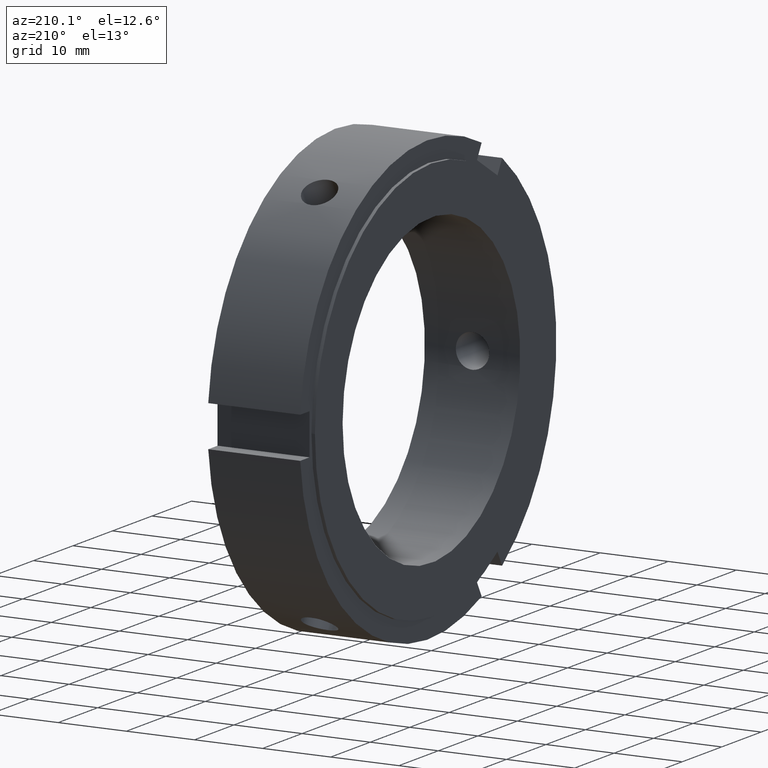
[diagram: clean part render]
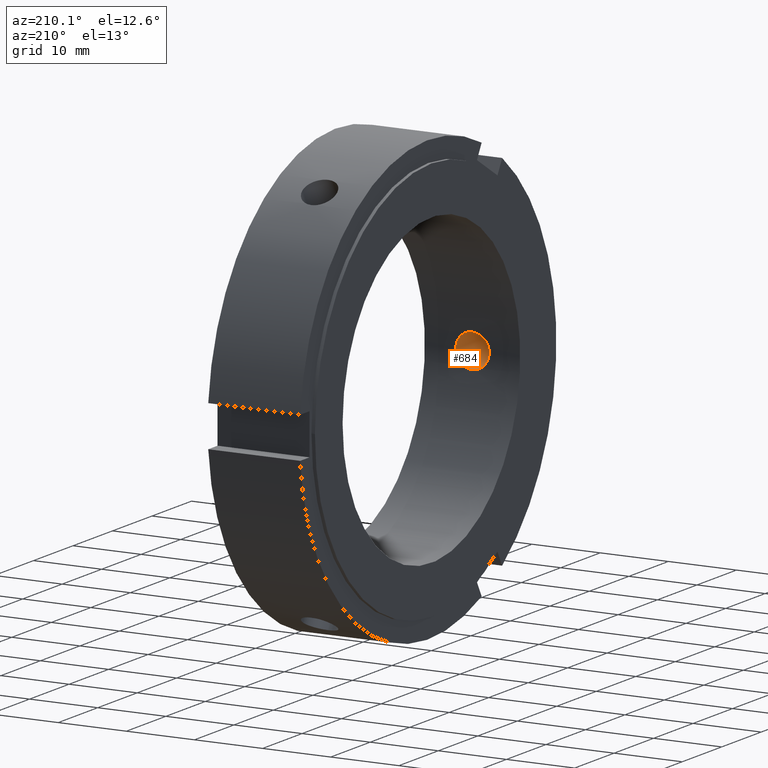
[diagram: same view with one face highlighted and labeled with its STEP entity id]
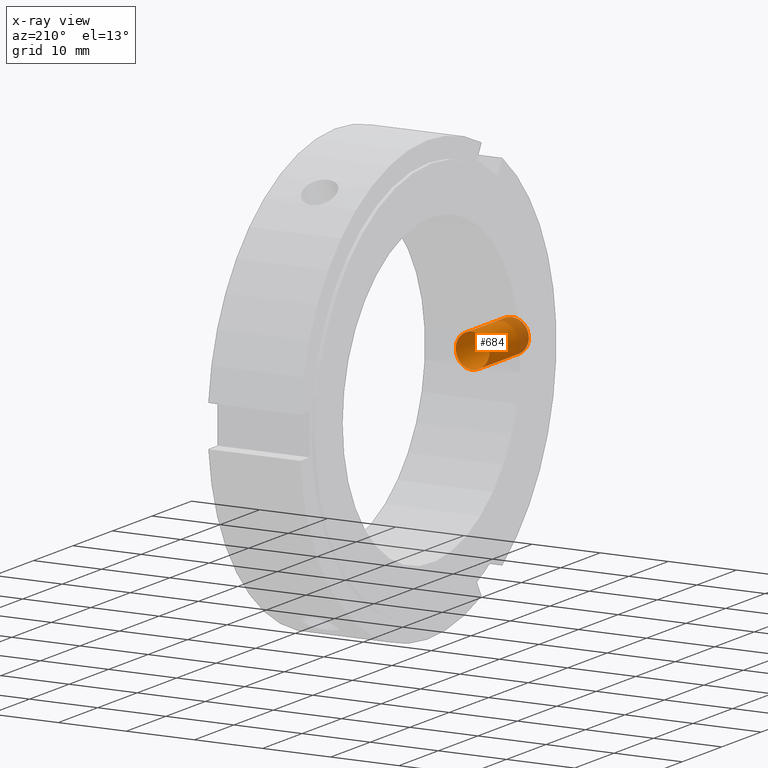
[diagram: x-ray of the same camera — body ghosted, the highlighted face saturated]
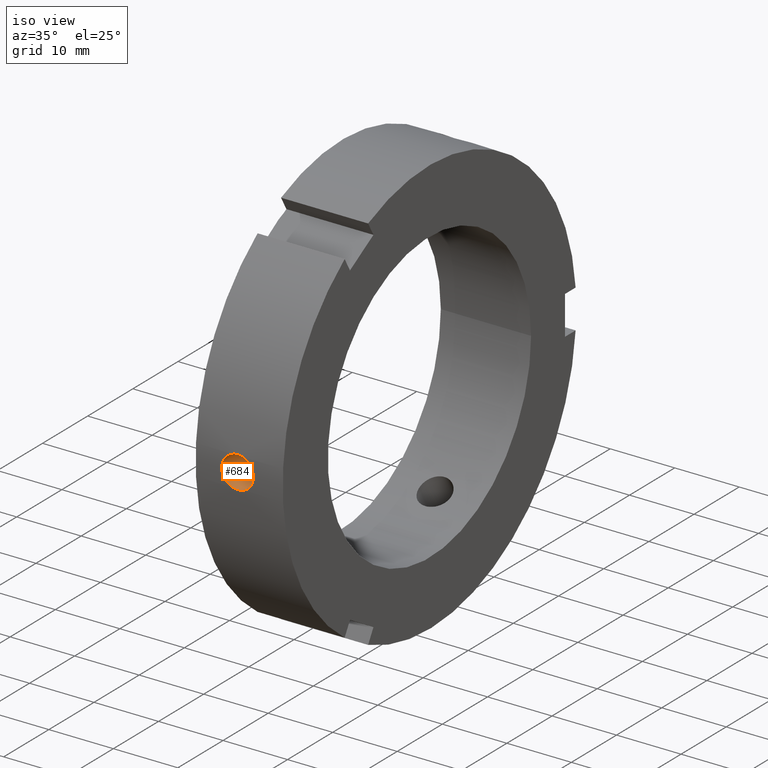
[diagram: same view with one face highlighted and labeled with its STEP entity id]
A machine part, auxiliary view. The second image highlights one B-rep face of the part: STEP entity #684.
The next image is the same camera in x-ray: the body ghosted, the highlighted face saturated — about 16% of this face is hidden behind the body in this view.
A second angle (iso view) of the same face is appended — the face is thin or edge-on in the first view.
In plain terms, the highlighted cylindrical surface (bore or boss wall) has radius 2.4585 mm, axis along (0, 1, 0).
Its self-contained STEP definition (entity closure, byte-faithful):
#593=CARTESIAN_POINT('',(6.999999999999994,-32.406878556102868,2.458500000000000));
#594=VERTEX_POINT('',#593);
#595=CARTESIAN_POINT('',(6.999999999999994,-32.406878556102868,2.458500000000000));
#596=CARTESIAN_POINT('',(7.308821499924727,-32.406878556102868,2.458500000000000));
#597=CARTESIAN_POINT('',(7.638146662988195,-32.411747431313700,2.396757788500281));
#598=CARTESIAN_POINT('',(8.243835254064031,-32.429327258547140,2.145822212323964));
#599=CARTESIAN_POINT('',(8.520208722892996,-32.441783734851064,1.956635320201254));
#600=CARTESIAN_POINT('',(8.956635077962162,-32.465161608583060,1.520208965132088));
#601=CARTESIAN_POINT('',(9.145822157180261,-32.477602516972169,1.243835388814245));
#602=CARTESIAN_POINT('',(9.396757878626824,-32.495146727474257,0.638146443799135));
#603=CARTESIAN_POINT('',(9.458499999999994,-32.500000000000000,0.308821157101273));
#604=CARTESIAN_POINT('',(9.458499999999994,-32.500000000000000,-0.308821157101272));
#605=CARTESIAN_POINT('',(9.396757878626824,-32.495146727474257,-0.638146443799134));
#606=CARTESIAN_POINT('',(9.145822157180261,-32.477602516972169,-1.243835388814244));
#607=CARTESIAN_POINT('',(8.956635077962162,-32.465161608583060,-1.520208965132088));
#608=CARTESIAN_POINT('',(8.520208722892996,-32.441783734851064,-1.956635320201254));
#609=CARTESIAN_POINT('',(8.243835254064031,-32.429327258547140,-2.145822212323964));
#610=CARTESIAN_POINT('',(7.638146662988195,-32.411747431313700,-2.396757788500281));
#611=CARTESIAN_POINT('',(7.308821499924727,-32.406878556102868,-2.458500000000000));
#612=CARTESIAN_POINT('',(6.691178500075261,-32.406878556102868,-2.458500000000000));
#613=CARTESIAN_POINT('',(6.361853337011794,-32.411747431313700,-2.396757788500281));
#614=CARTESIAN_POINT('',(5.756164745935958,-32.429327258547140,-2.145822212323964));
#615=CARTESIAN_POINT('',(5.479791277106994,-32.441783734851064,-1.956635320201254));
#616=CARTESIAN_POINT('',(5.043364922037828,-32.465161608583060,-1.520208965132088));
#617=CARTESIAN_POINT('',(4.854177842819729,-32.477602516972169,-1.243835388814245));
#618=CARTESIAN_POINT('',(4.603242121373166,-32.495146727474257,-0.638146443799135));
#619=CARTESIAN_POINT('',(4.541499999999994,-32.500000000000000,-0.308821157101273));
#620=CARTESIAN_POINT('',(4.541499999999994,-32.500000000000000,0.308821157101272));
#621=CARTESIAN_POINT('',(4.603242121373166,-32.495146727474257,0.638146443799134));
#622=CARTESIAN_POINT('',(4.854177842819728,-32.477602516972169,1.243835388814244));
#623=CARTESIAN_POINT('',(5.043364922037828,-32.465161608583060,1.520208965132087));
#624=CARTESIAN_POINT('',(5.479791277106994,-32.441783734851064,1.956635320201253));
#625=CARTESIAN_POINT('',(5.756164745935957,-32.429327258547140,2.145822212323964));
#626=CARTESIAN_POINT('',(6.361853337011794,-32.411747431313700,2.396757788500281));
#627=CARTESIAN_POINT('',(6.691178500075260,-32.406878556102868,2.458500000000000));
#628=CARTESIAN_POINT('',(6.999999999999993,-32.406878556102868,2.458500000000000));
#629=B_SPLINE_CURVE_WITH_KNOTS('',3,(#595,#596,#597,#598,#599,#600,#601,#602,#603,#604,#605,#606,#607,#608,#609,#610,#611,#612,#613,#614,#615,#616,#617,#618,#619,#620,#621,#622,#623,#624,#625,#626,#627,#628),.UNSPECIFIED.,.T.,.U.,(4,2,2,2,2,2,2,2,2,2,2,2,2,2,2,2,4),(0.0,0.092646449977420,0.185292899954840,0.277939247085222,0.370585594215604,0.463231941345985,0.555878288476367,0.648524738453787,0.741171188431207,0.833817638408627,0.926464088386047,1.019110435516429,1.111756782646811,1.204403129777192,1.297049476907574,1.389695926884994,1.482342376862414),.UNSPECIFIED.);
#630=EDGE_CURVE('',#594,#594,#629,.T.);
#635=CARTESIAN_POINT('',(6.999999999999994,-92.886924517323607,0.0));
#636=DIRECTION('',(0.0,1.0,0.0));
#637=DIRECTION('',(-1.0,0.0,0.0));
#638=AXIS2_PLACEMENT_3D('',#635,#636,#637);
#639=CYLINDRICAL_SURFACE('',#638,2.458500000000000);
#640=ORIENTED_EDGE('',*,*,#630,.F.);
#641=EDGE_LOOP('',(#640));
#642=FACE_OUTER_BOUND('',#641,.T.);
#643=CARTESIAN_POINT('',(6.999999999999994,-22.365280632042154,2.458500000000000));
#644=VERTEX_POINT('',#643);
#645=CARTESIAN_POINT('',(6.999999999999993,-22.365280632042154,2.458500000000000));
#646=CARTESIAN_POINT('',(6.691039606320620,-22.365280632042154,2.458500000000000));
#647=CARTESIAN_POINT('',(6.361655301601020,-22.372342768713821,2.396703641114719));
#648=CARTESIAN_POINT('',(5.756005436668365,-22.397807019914900,2.145728296047083));
#649=CARTESIAN_POINT('',(5.479718704991166,-22.415836664311513,1.956562748085426));
#650=CARTESIAN_POINT('',(5.043438312237381,-22.449646149616235,1.520282355331640));
#651=CARTESIAN_POINT('',(4.854271935280003,-22.467628717583786,1.243995160332736));
#652=CARTESIAN_POINT('',(4.603295976404793,-22.492985160308898,0.638343736636802));
#653=CARTESIAN_POINT('',(4.541499999999994,-22.500000000000000,0.308958891906832));
#654=CARTESIAN_POINT('',(4.541499999999994,-22.500000000000000,-0.308958891906832));
#655=CARTESIAN_POINT('',(4.603295976404794,-22.492985160308898,-0.638343736636803));
#656=CARTESIAN_POINT('',(4.854271935280004,-22.467628717583786,-1.243995160332737));
#657=CARTESIAN_POINT('',(5.043438312237381,-22.449646149616235,-1.520282355331640));
#658=CARTESIAN_POINT('',(5.479718704991166,-22.415836664311513,-1.956562748085426));
#659=CARTESIAN_POINT('',(5.756005436668365,-22.397807019914900,-2.145728296047083));
#660=CARTESIAN_POINT('',(6.361655301601020,-22.372342768713821,-2.396703641114719));
#661=CARTESIAN_POINT('',(6.691039606320621,-22.365280632042154,-2.458500000000000));
#662=CARTESIAN_POINT('',(7.308960393679367,-22.365280632042154,-2.458500000000000));
#663=CARTESIAN_POINT('',(7.638344698398968,-22.372342768713821,-2.396703641114719));
#664=CARTESIAN_POINT('',(8.243994563331624,-22.397807019914900,-2.145728296047083));
#665=CARTESIAN_POINT('',(8.520281295008822,-22.415836664311513,-1.956562748085426));
#666=CARTESIAN_POINT('',(8.956561687762608,-22.449646149616235,-1.520282355331640));
#667=CARTESIAN_POINT('',(9.145728064719984,-22.467628717583786,-1.243995160332737));
#668=CARTESIAN_POINT('',(9.396704023595195,-22.492985160308898,-0.638343736636803));
#669=CARTESIAN_POINT('',(9.458499999999994,-22.500000000000000,-0.308958891906832));
#670=CARTESIAN_POINT('',(9.458499999999994,-22.500000000000000,0.308958891906831));
#671=CARTESIAN_POINT('',(9.396704023595195,-22.492985160308898,0.638343736636801));
#672=CARTESIAN_POINT('',(9.145728064719984,-22.467628717583786,1.243995160332736));
#673=CARTESIAN_POINT('',(8.956561687762608,-22.449646149616235,1.520282355331640));
#674=CARTESIAN_POINT('',(8.520281295008822,-22.415836664311513,1.956562748085426));
#675=CARTESIAN_POINT('',(8.243994563331622,-22.397807019914900,2.145728296047083));
#676=CARTESIAN_POINT('',(7.638344698398967,-22.372342768713821,2.396703641114718));
#677=CARTESIAN_POINT('',(7.308960393679367,-22.365280632042154,2.458500000000000));
#678=CARTESIAN_POINT('',(6.999999999999994,-22.365280632042154,2.458500000000000));
#679=B_SPLINE_CURVE_WITH_KNOTS('',3,(#645,#646,#647,#648,#649,#650,#651,#652,#653,#654,#655,#656,#657,#658,#659,#660,#661,#662,#663,#664,#665,#666,#667,#668,#669,#670,#671,#672,#673,#674,#675,#676,#677,#678),.UNSPECIFIED.,.T.,.U.,(4,2,2,2,2,2,2,2,2,2,2,2,2,2,2,2,4),(0.0,0.092688118103812,0.185376236207624,0.278063903779674,0.370751571351723,0.463439238923772,0.556126906495822,0.648815024599634,0.741503142703446,0.834191260807258,0.926879378911070,1.019567046483120,1.112254714055169,1.204942381627218,1.297630049199268,1.390318167303080,1.483006285406892),.UNSPECIFIED.);
#680=EDGE_CURVE('',#644,#644,#679,.T.);
#681=ORIENTED_EDGE('',*,*,#680,.F.);
#682=EDGE_LOOP('',(#681));
#683=FACE_BOUND('',#682,.T.);
#684=ADVANCED_FACE('',(#642,#683),#639,.F.);